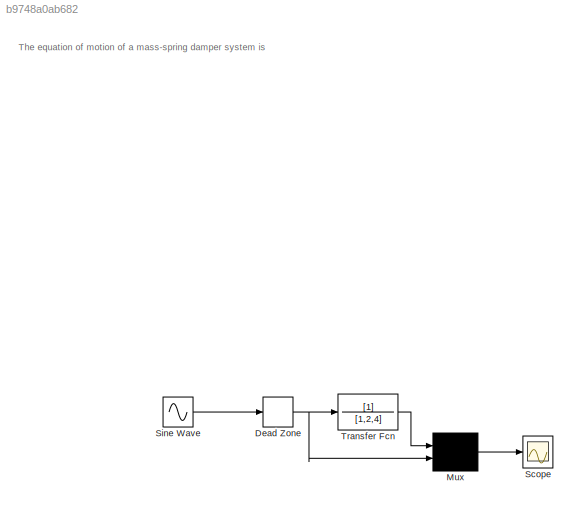
MODEL slx_b9748a0ab682
KIND model
CONFIG AbsTol = auto
CONFIG EnableMultiTasking = off
CONFIG FixedStep = auto
CONFIG MaxStep = auto
CONFIG MinStep = auto
CONFIG RelTol = 1e-3
CONFIG SampleTimeConstraint = Unconstrained
CONFIG SolverName = VariableStepAuto
CONFIG StartTime = 0.0
CONFIG StopTime = 10.0
BLOCK [DeadZone] Dead Zone
BLOCK [Mux] Mux
  DisplayOption = signals
  Inputs = 2
BLOCK [Scope] Scope
  Floating = off
  NumInputPorts = 1
  ScopeSpecificationString = Simulink.scopes.TimeScopeBlockCfg('CurrentConfiguration', extmgr.ConfigurationSet(extmgr.Configuration('Core','General UI',true),extmgr.Configuration('Core','Source UI',true),extmgr.Configuration('Sources','WiredSimulink',true),extmgr.Configuration('Visuals','Time Domain',true,'SerializedDisplays',{struct('MinYLimReal','-0.62169','MaxYLimReal','0.62169','YLabelReal','','MinYLimMag','0.00000','MaxY...<+1344ch>
BLOCK [Sin] Sine Wave
  Frequency = 1.4
  SampleTime = 0
BLOCK [TransferFcn] Transfer Fcn
  Denominator = [1,2,4]
ANNOTATION (root): The equation of motion of a mass-spring damper system is
NET Dead Zone:1 -> Mux:2, Transfer Fcn:1
LINE Mux:1 -> Scope:1
LINE Sine Wave:1 -> Dead Zone:1
LINE Transfer Fcn:1 -> Mux:1
note: NET lines group one-source signal fan-out (src -> all destinations, sorted); 1:1 wires keep LINE
